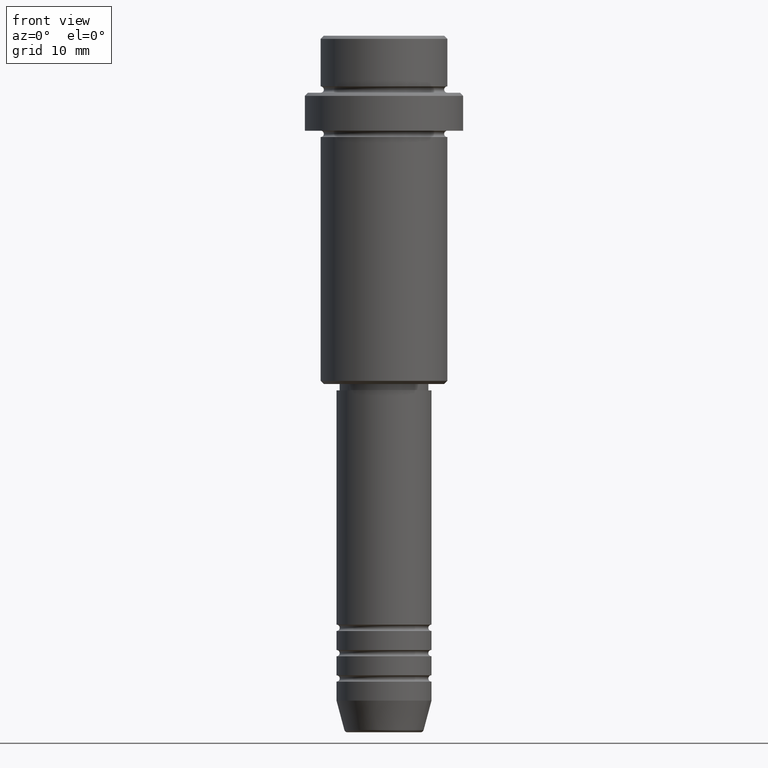
[diagram: clean part render]
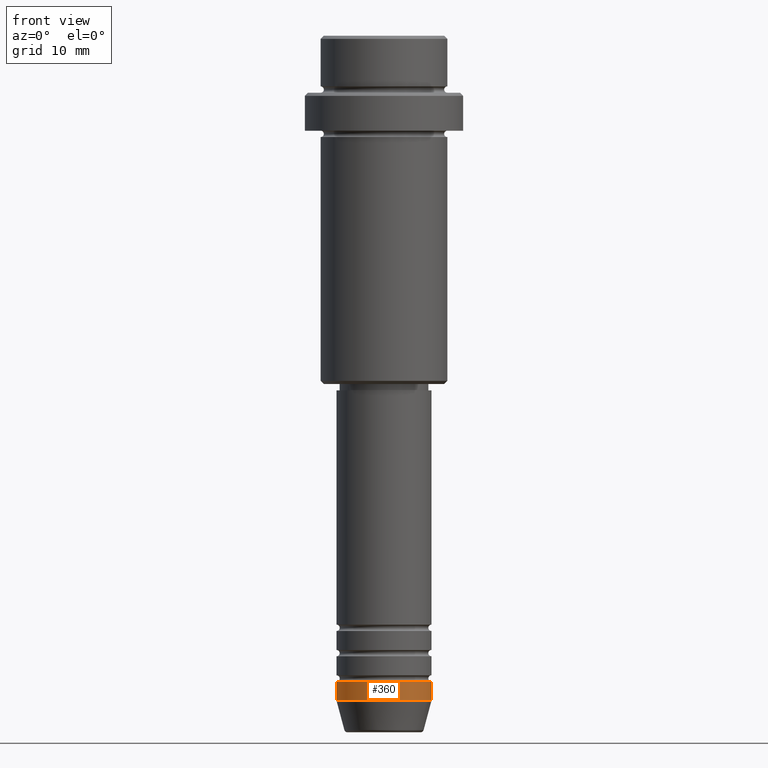
[diagram: same view with one face highlighted and labeled with its STEP entity id]
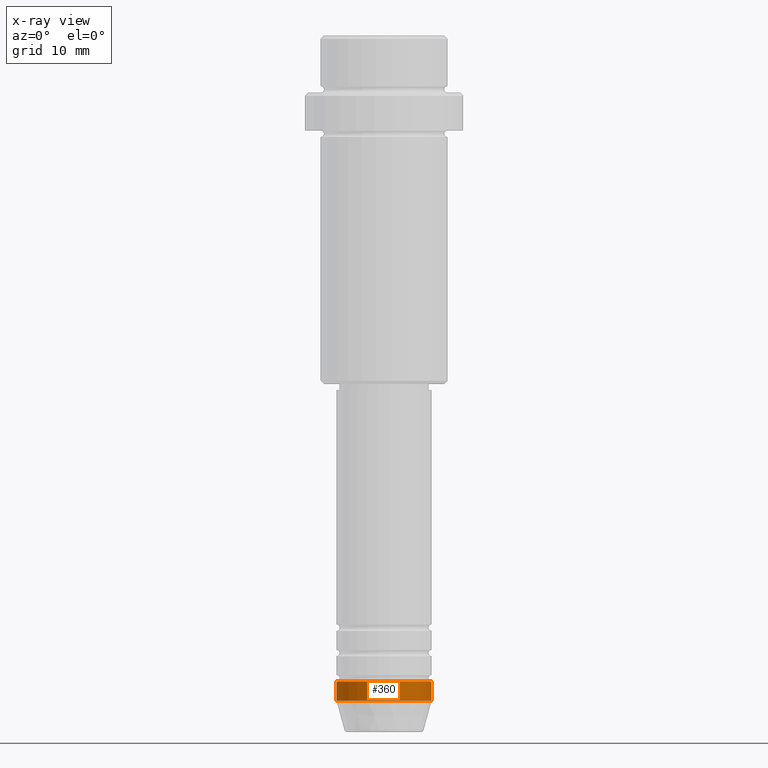
[diagram: x-ray of the same camera — body ghosted, the highlighted face saturated]
A machine part, front view. The second image highlights one B-rep face of the part: STEP entity #360.
The next image is the same camera in x-ray: the body ghosted, the highlighted face saturated — about 0% of this face is hidden behind the body in this view.
In plain terms, the highlighted cylindrical surface (partial cylindrical patch) has radius 7.5 mm, axis along (-0, -0, 1).
Its self-contained STEP definition (entity closure, byte-faithful):
#9 = EDGE_CURVE ( 'NONE', #173, #19, #301, .T. ) ;
#19 = VERTEX_POINT ( 'NONE', #515 ) ;
#43 = ORIENTED_EDGE ( 'NONE', *, *, #1173, .F. ) ;
#76 = DIRECTION ( 'NONE',  ( 1.000000000000000000, 0.000000000000000000, 0.000000000000000000 ) ) ;
#171 = LINE ( 'NONE', #500, #1398 ) ;
#173 = VERTEX_POINT ( 'NONE', #1192 ) ;
#291 = CARTESIAN_POINT ( 'NONE',  ( 7.500000000000000000, 0.000000000000000000, -102.0000000000000142 ) ) ;
#301 = CIRCLE ( 'NONE', #1181, 7.500000000000000000 ) ;
#306 = DIRECTION ( 'NONE',  ( -0.000000000000000000, -0.000000000000000000, 1.000000000000000000 ) ) ;
#323 = CARTESIAN_POINT ( 'NONE',  ( 0.000000000000000000, 0.000000000000000000, -105.0000000000000142 ) ) ;
#328 = AXIS2_PLACEMENT_3D ( 'NONE', #433, #1074, #536 ) ;
#338 = ORIENTED_EDGE ( 'NONE', *, *, #9, .T. ) ;
#360 = ADVANCED_FACE ( 'NONE', ( #970 ), #543, .T. ) ;
#416 = CIRCLE ( 'NONE', #1207, 7.500000000000000000 ) ;
#433 = CARTESIAN_POINT ( 'NONE',  ( 0.000000000000000000, 0.000000000000000000, 0.000000000000000000 ) ) ;
#481 = LINE ( 'NONE', #1227, #915 ) ;
#494 = DIRECTION ( 'NONE',  ( -0.000000000000000000, -0.000000000000000000, 1.000000000000000000 ) ) ;
#500 = CARTESIAN_POINT ( 'NONE',  ( -7.500000000000000000, 9.184850993605147944E-16, 0.000000000000000000 ) ) ;
#515 = CARTESIAN_POINT ( 'NONE',  ( 7.500000000000000000, 0.000000000000000000, -105.0000000000000142 ) ) ;
#536 = DIRECTION ( 'NONE',  ( 1.000000000000000000, 0.000000000000000000, 0.000000000000000000 ) ) ;
#543 = CYLINDRICAL_SURFACE ( 'NONE', #328, 7.500000000000000000 ) ;
#569 = EDGE_CURVE ( 'NONE', #19, #1100, #481, .T. ) ;
#600 = DIRECTION ( 'NONE',  ( 1.000000000000000000, 0.000000000000000000, 0.000000000000000000 ) ) ;
#622 = DIRECTION ( 'NONE',  ( -0.000000000000000000, -0.000000000000000000, 1.000000000000000000 ) ) ;
#801 = EDGE_CURVE ( 'NONE', #173, #1344, #171, .T. ) ;
#908 = DIRECTION ( 'NONE',  ( -0.000000000000000000, -0.000000000000000000, 1.000000000000000000 ) ) ;
#915 = VECTOR ( 'NONE', #908, 1000.000000000000000 ) ;
#925 = ORIENTED_EDGE ( 'NONE', *, *, #569, .T. ) ;
#930 = CARTESIAN_POINT ( 'NONE',  ( 0.000000000000000000, 0.000000000000000000, -102.0000000000000142 ) ) ;
#963 = CARTESIAN_POINT ( 'NONE',  ( -7.500000000000000000, 9.184850993605147944E-16, -102.0000000000000142 ) ) ;
#970 = FACE_OUTER_BOUND ( 'NONE', #1079, .T. ) ;
#1074 = DIRECTION ( 'NONE',  ( -0.000000000000000000, -0.000000000000000000, 1.000000000000000000 ) ) ;
#1079 = EDGE_LOOP ( 'NONE', ( #1316, #338, #925, #43 ) ) ;
#1100 = VERTEX_POINT ( 'NONE', #291 ) ;
#1173 = EDGE_CURVE ( 'NONE', #1344, #1100, #416, .T. ) ;
#1181 = AXIS2_PLACEMENT_3D ( 'NONE', #323, #622, #76 ) ;
#1192 = CARTESIAN_POINT ( 'NONE',  ( -7.500000000000000000, 9.184850993605147944E-16, -105.0000000000000142 ) ) ;
#1207 = AXIS2_PLACEMENT_3D ( 'NONE', #930, #494, #600 ) ;
#1227 = CARTESIAN_POINT ( 'NONE',  ( 7.500000000000000000, 0.000000000000000000, 0.000000000000000000 ) ) ;
#1316 = ORIENTED_EDGE ( 'NONE', *, *, #801, .F. ) ;
#1344 = VERTEX_POINT ( 'NONE', #963 ) ;
#1398 = VECTOR ( 'NONE', #306, 1000.000000000000000 ) ;